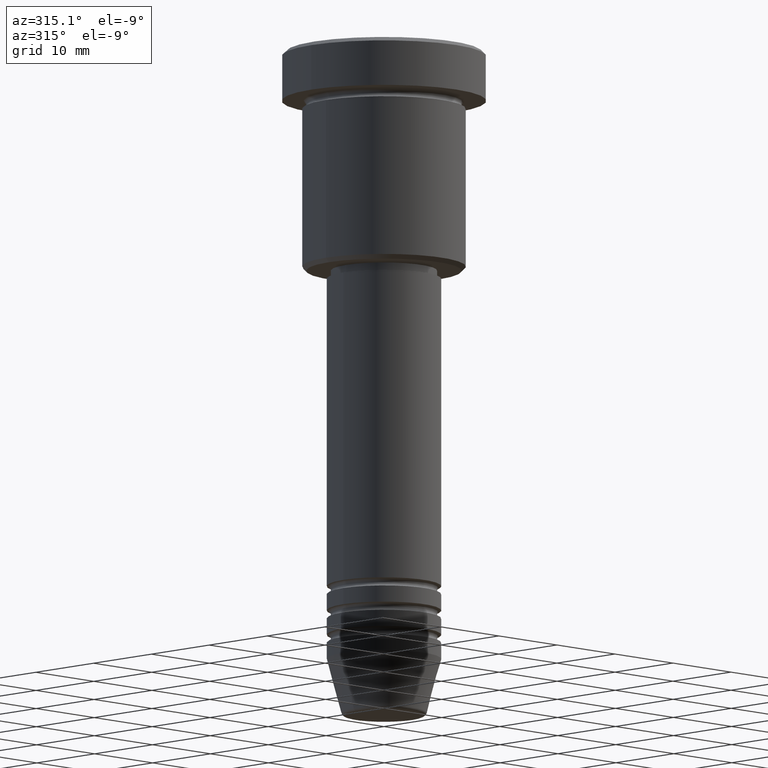
[diagram: clean part render]
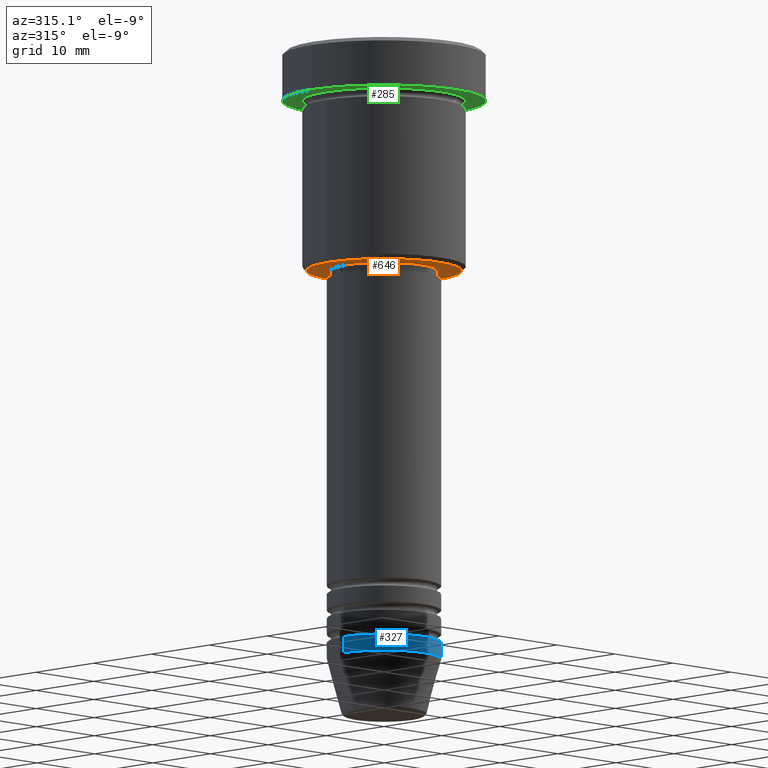
[diagram: same view with three faces highlighted in distinct colors, each labeled with its STEP entity id]
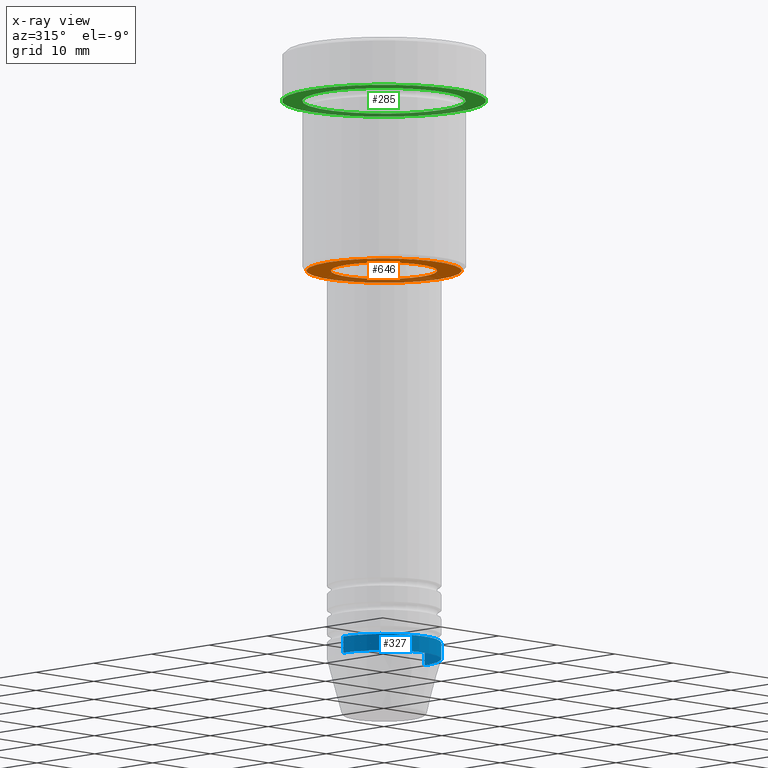
[diagram: x-ray of the same camera — body ghosted, the three highlighted faces saturated]
A machine part, auxiliary view with three faces highlighted in distinct colors.
The next image is the same camera in x-ray (body ghosted, the three faces saturated) — at least one of them is partly hidden behind the body in this view.
Their STEP definitions:

[orange] entity #646 — the highlighted planar face has unit normal (0, 0, -1).
#14 = ORIENTED_EDGE ( 'NONE', *, *, #63, .T. ) ;
#47 = FACE_OUTER_BOUND ( 'NONE', #832, .T. ) ;
#58 = CARTESIAN_POINT ( 'NONE',  ( 0.000000000000000000, 0.000000000000000000, -27.00000000000001421 ) ) ;
#63 = EDGE_CURVE ( 'NONE', #1011, #880, #997, .T. ) ;
#64 = DIRECTION ( 'NONE',  ( -0.000000000000000000, -0.000000000000000000, 1.000000000000000000 ) ) ;
#78 = EDGE_CURVE ( 'NONE', #880, #1011, #409, .T. ) ;
#93 = CARTESIAN_POINT ( 'NONE',  ( -9.499999999999987566, 1.194030629168668681E-15, -27.00000000000001066 ) ) ;
#127 = CARTESIAN_POINT ( 'NONE',  ( 0.000000000000000000, 10.00000000000000000, -27.00000000000001066 ) ) ;
#165 = AXIS2_PLACEMENT_3D ( 'NONE', #667, #557, #318 ) ;
#167 = CARTESIAN_POINT ( 'NONE',  ( 0.000000000000000000, 0.000000000000000000, -27.00000000000001421 ) ) ;
#181 = AXIS2_PLACEMENT_3D ( 'NONE', #127, #829, #943 ) ;
#212 = VERTEX_POINT ( 'NONE', #687 ) ;
#237 = AXIS2_PLACEMENT_3D ( 'NONE', #58, #341, #878 ) ;
#252 = EDGE_CURVE ( 'NONE', #711, #212, #909, .T. ) ;
#268 = EDGE_CURVE ( 'NONE', #212, #711, #648, .T. ) ;
#318 = DIRECTION ( 'NONE',  ( -1.000000000000000000, 0.000000000000000000, 0.000000000000000000 ) ) ;
#341 = DIRECTION ( 'NONE',  ( -0.000000000000000000, -0.000000000000000000, 1.000000000000000000 ) ) ;
#409 = CIRCLE ( 'NONE', #165, 9.499999999999987566 ) ;
#476 = PLANE ( 'NONE',  #181 ) ;
#489 = DIRECTION ( 'NONE',  ( -1.000000000000000000, 0.000000000000000000, 0.000000000000000000 ) ) ;
#557 = DIRECTION ( 'NONE',  ( 0.000000000000000000, 0.000000000000000000, -1.000000000000000000 ) ) ;
#646 = ADVANCED_FACE ( 'NONE', ( #47, #1035 ), #476, .T. ) ;
#648 = CIRCLE ( 'NONE', #237, 6.500000000000000000 ) ;
#649 = CARTESIAN_POINT ( 'NONE',  ( 0.000000000000000000, 0.000000000000000000, -27.00000000000001066 ) ) ;
#667 = CARTESIAN_POINT ( 'NONE',  ( 0.000000000000000000, 0.000000000000000000, -27.00000000000001066 ) ) ;
#687 = CARTESIAN_POINT ( 'NONE',  ( 6.500000000000000000, 0.000000000000000000, -27.00000000000001421 ) ) ;
#711 = VERTEX_POINT ( 'NONE', #945 ) ;
#765 = DIRECTION ( 'NONE',  ( 1.000000000000000000, 0.000000000000000000, 0.000000000000000000 ) ) ;
#788 = AXIS2_PLACEMENT_3D ( 'NONE', #167, #64, #765 ) ;
#829 = DIRECTION ( 'NONE',  ( 0.000000000000000000, 0.000000000000000000, -1.000000000000000000 ) ) ;
#832 = EDGE_LOOP ( 'NONE', ( #917, #14 ) ) ;
#855 = AXIS2_PLACEMENT_3D ( 'NONE', #649, #928, #489 ) ;
#857 = EDGE_LOOP ( 'NONE', ( #1160, #1071 ) ) ;
#878 = DIRECTION ( 'NONE',  ( 1.000000000000000000, 0.000000000000000000, 0.000000000000000000 ) ) ;
#880 = VERTEX_POINT ( 'NONE', #1048 ) ;
#909 = CIRCLE ( 'NONE', #788, 6.500000000000000000 ) ;
#917 = ORIENTED_EDGE ( 'NONE', *, *, #78, .T. ) ;
#928 = DIRECTION ( 'NONE',  ( 0.000000000000000000, 0.000000000000000000, -1.000000000000000000 ) ) ;
#943 = DIRECTION ( 'NONE',  ( -1.000000000000000000, 0.000000000000000000, -0.000000000000000000 ) ) ;
#945 = CARTESIAN_POINT ( 'NONE',  ( -6.500000000000000000, 7.960204194457795477E-16, -27.00000000000001421 ) ) ;
#997 = CIRCLE ( 'NONE', #855, 9.499999999999987566 ) ;
#1011 = VERTEX_POINT ( 'NONE', #93 ) ;
#1035 = FACE_BOUND ( 'NONE', #857, .T. ) ;
#1048 = CARTESIAN_POINT ( 'NONE',  ( 9.499999999999987566, 0.000000000000000000, -27.00000000000001066 ) ) ;
#1071 = ORIENTED_EDGE ( 'NONE', *, *, #252, .T. ) ;
#1160 = ORIENTED_EDGE ( 'NONE', *, *, #268, .T. ) ;

[blue] entity #327 — the highlighted cylindrical surface (partial cylindrical patch) has radius 7 mm, axis along (-0, -0, 1).
#8 = CIRCLE ( 'NONE', #293, 7.000000000000000000 ) ;
#40 = CARTESIAN_POINT ( 'NONE',  ( -7.000000000000000000, 8.572527594031473190E-16, -73.00000000000001421 ) ) ;
#55 = EDGE_CURVE ( 'NONE', #365, #394, #1019, .T. ) ;
#74 = VERTEX_POINT ( 'NONE', #1111 ) ;
#263 = CARTESIAN_POINT ( 'NONE',  ( 7.000000000000000000, 0.000000000000000000, -75.00000000000001421 ) ) ;
#272 = CYLINDRICAL_SURFACE ( 'NONE', #406, 7.000000000000000000 ) ;
#283 = LINE ( 'NONE', #395, #499 ) ;
#293 = AXIS2_PLACEMENT_3D ( 'NONE', #352, #620, #712 ) ;
#327 = ADVANCED_FACE ( 'NONE', ( #774 ), #272, .T. ) ;
#352 = CARTESIAN_POINT ( 'NONE',  ( 0.000000000000000000, 0.000000000000000000, -75.00000000000001421 ) ) ;
#356 = CARTESIAN_POINT ( 'NONE',  ( 7.000000000000000000, 0.000000000000000000, -73.00000000000001421 ) ) ;
#365 = VERTEX_POINT ( 'NONE', #263 ) ;
#394 = VERTEX_POINT ( 'NONE', #356 ) ;
#395 = CARTESIAN_POINT ( 'NONE',  ( -7.000000000000000000, 8.572527594031473190E-16, 0.000000000000000000 ) ) ;
#406 = AXIS2_PLACEMENT_3D ( 'NONE', #1006, #882, #719 ) ;
#413 = EDGE_CURVE ( 'NONE', #74, #365, #8, .T. ) ;
#449 = ORIENTED_EDGE ( 'NONE', *, *, #1158, .F. ) ;
#499 = VECTOR ( 'NONE', #542, 1000.000000000000000 ) ;
#504 = ORIENTED_EDGE ( 'NONE', *, *, #55, .T. ) ;
#521 = ORIENTED_EDGE ( 'NONE', *, *, #1086, .F. ) ;
#542 = DIRECTION ( 'NONE',  ( -0.000000000000000000, -0.000000000000000000, 1.000000000000000000 ) ) ;
#580 = EDGE_LOOP ( 'NONE', ( #449, #778, #504, #521 ) ) ;
#611 = AXIS2_PLACEMENT_3D ( 'NONE', #613, #623, #980 ) ;
#613 = CARTESIAN_POINT ( 'NONE',  ( 0.000000000000000000, 0.000000000000000000, -73.00000000000001421 ) ) ;
#620 = DIRECTION ( 'NONE',  ( -0.000000000000000000, -0.000000000000000000, 1.000000000000000000 ) ) ;
#623 = DIRECTION ( 'NONE',  ( -0.000000000000000000, -0.000000000000000000, 1.000000000000000000 ) ) ;
#684 = VERTEX_POINT ( 'NONE', #40 ) ;
#712 = DIRECTION ( 'NONE',  ( 1.000000000000000000, 0.000000000000000000, 0.000000000000000000 ) ) ;
#719 = DIRECTION ( 'NONE',  ( 1.000000000000000000, 0.000000000000000000, 0.000000000000000000 ) ) ;
#774 = FACE_OUTER_BOUND ( 'NONE', #580, .T. ) ;
#778 = ORIENTED_EDGE ( 'NONE', *, *, #413, .T. ) ;
#882 = DIRECTION ( 'NONE',  ( -0.000000000000000000, -0.000000000000000000, 1.000000000000000000 ) ) ;
#935 = CARTESIAN_POINT ( 'NONE',  ( 7.000000000000000000, 0.000000000000000000, 0.000000000000000000 ) ) ;
#980 = DIRECTION ( 'NONE',  ( 1.000000000000000000, 0.000000000000000000, 0.000000000000000000 ) ) ;
#1006 = CARTESIAN_POINT ( 'NONE',  ( 0.000000000000000000, 0.000000000000000000, 0.000000000000000000 ) ) ;
#1019 = LINE ( 'NONE', #935, #1157 ) ;
#1074 = CIRCLE ( 'NONE', #611, 7.000000000000000000 ) ;
#1086 = EDGE_CURVE ( 'NONE', #684, #394, #1074, .T. ) ;
#1111 = CARTESIAN_POINT ( 'NONE',  ( -7.000000000000000000, 8.572527594031473190E-16, -75.00000000000001421 ) ) ;
#1137 = DIRECTION ( 'NONE',  ( -0.000000000000000000, -0.000000000000000000, 1.000000000000000000 ) ) ;
#1157 = VECTOR ( 'NONE', #1137, 1000.000000000000000 ) ;
#1158 = EDGE_CURVE ( 'NONE', #74, #684, #283, .T. ) ;

[green] entity #285 — the highlighted planar face has unit normal (0, 0, -1).
#79 = PLANE ( 'NONE',  #346 ) ;
#103 = EDGE_CURVE ( 'NONE', #445, #1128, #147, .T. ) ;
#131 = AXIS2_PLACEMENT_3D ( 'NONE', #303, #228, #307 ) ;
#141 = EDGE_CURVE ( 'NONE', #708, #1052, #335, .T. ) ;
#147 = CIRCLE ( 'NONE', #184, 12.50000000000000000 ) ;
#149 = FACE_BOUND ( 'NONE', #950, .T. ) ;
#154 = DIRECTION ( 'NONE',  ( 1.000000000000000000, 0.000000000000000000, 0.000000000000000000 ) ) ;
#179 = AXIS2_PLACEMENT_3D ( 'NONE', #192, #905, #638 ) ;
#184 = AXIS2_PLACEMENT_3D ( 'NONE', #1034, #1131, #675 ) ;
#192 = CARTESIAN_POINT ( 'NONE',  ( 0.000000000000000000, 0.000000000000000000, -5.999999999999996447 ) ) ;
#228 = DIRECTION ( 'NONE',  ( -0.000000000000000000, -0.000000000000000000, 1.000000000000000000 ) ) ;
#275 = EDGE_CURVE ( 'NONE', #1128, #445, #722, .T. ) ;
#279 = CARTESIAN_POINT ( 'NONE',  ( 12.50000000000000000, 0.000000000000000000, -5.999999999999996447 ) ) ;
#285 = ADVANCED_FACE ( 'NONE', ( #149, #616 ), #79, .T. ) ;
#303 = CARTESIAN_POINT ( 'NONE',  ( 0.000000000000000000, 0.000000000000000000, -5.999999999999996447 ) ) ;
#307 = DIRECTION ( 'NONE',  ( -1.000000000000000000, 0.000000000000000000, 0.000000000000000000 ) ) ;
#321 = ORIENTED_EDGE ( 'NONE', *, *, #275, .F. ) ;
#335 = CIRCLE ( 'NONE', #131, 10.00000000000000000 ) ;
#346 = AXIS2_PLACEMENT_3D ( 'NONE', #416, #1062, #1056 ) ;
#374 = ORIENTED_EDGE ( 'NONE', *, *, #141, .T. ) ;
#416 = CARTESIAN_POINT ( 'NONE',  ( 0.000000000000000000, 12.50000000000000000, -5.999999999999996447 ) ) ;
#445 = VERTEX_POINT ( 'NONE', #279 ) ;
#469 = EDGE_CURVE ( 'NONE', #1052, #708, #758, .T. ) ;
#582 = CARTESIAN_POINT ( 'NONE',  ( 10.00000000000000000, 1.224646799147353256E-15, -5.999999999999996447 ) ) ;
#616 = FACE_OUTER_BOUND ( 'NONE', #797, .T. ) ;
#638 = DIRECTION ( 'NONE',  ( -1.000000000000000000, 0.000000000000000000, 0.000000000000000000 ) ) ;
#675 = DIRECTION ( 'NONE',  ( 1.000000000000000000, 0.000000000000000000, 0.000000000000000000 ) ) ;
#708 = VERTEX_POINT ( 'NONE', #582 ) ;
#722 = CIRCLE ( 'NONE', #1174, 12.50000000000000000 ) ;
#758 = CIRCLE ( 'NONE', #179, 10.00000000000000000 ) ;
#766 = ORIENTED_EDGE ( 'NONE', *, *, #103, .F. ) ;
#769 = CARTESIAN_POINT ( 'NONE',  ( 0.000000000000000000, 0.000000000000000000, -5.999999999999996447 ) ) ;
#797 = EDGE_LOOP ( 'NONE', ( #766, #321 ) ) ;
#886 = CARTESIAN_POINT ( 'NONE',  ( -12.50000000000000000, 1.530808498934191521E-15, -5.999999999999996447 ) ) ;
#905 = DIRECTION ( 'NONE',  ( -0.000000000000000000, -0.000000000000000000, 1.000000000000000000 ) ) ;
#950 = EDGE_LOOP ( 'NONE', ( #978, #374 ) ) ;
#967 = DIRECTION ( 'NONE',  ( -0.000000000000000000, -0.000000000000000000, 1.000000000000000000 ) ) ;
#978 = ORIENTED_EDGE ( 'NONE', *, *, #469, .T. ) ;
#1034 = CARTESIAN_POINT ( 'NONE',  ( 0.000000000000000000, 0.000000000000000000, -5.999999999999996447 ) ) ;
#1052 = VERTEX_POINT ( 'NONE', #1090 ) ;
#1056 = DIRECTION ( 'NONE',  ( -1.000000000000000000, 0.000000000000000000, -0.000000000000000000 ) ) ;
#1062 = DIRECTION ( 'NONE',  ( 0.000000000000000000, 0.000000000000000000, -1.000000000000000000 ) ) ;
#1090 = CARTESIAN_POINT ( 'NONE',  ( -10.00000000000000000, 0.000000000000000000, -5.999999999999996447 ) ) ;
#1128 = VERTEX_POINT ( 'NONE', #886 ) ;
#1131 = DIRECTION ( 'NONE',  ( -0.000000000000000000, -0.000000000000000000, 1.000000000000000000 ) ) ;
#1174 = AXIS2_PLACEMENT_3D ( 'NONE', #769, #967, #154 ) ;